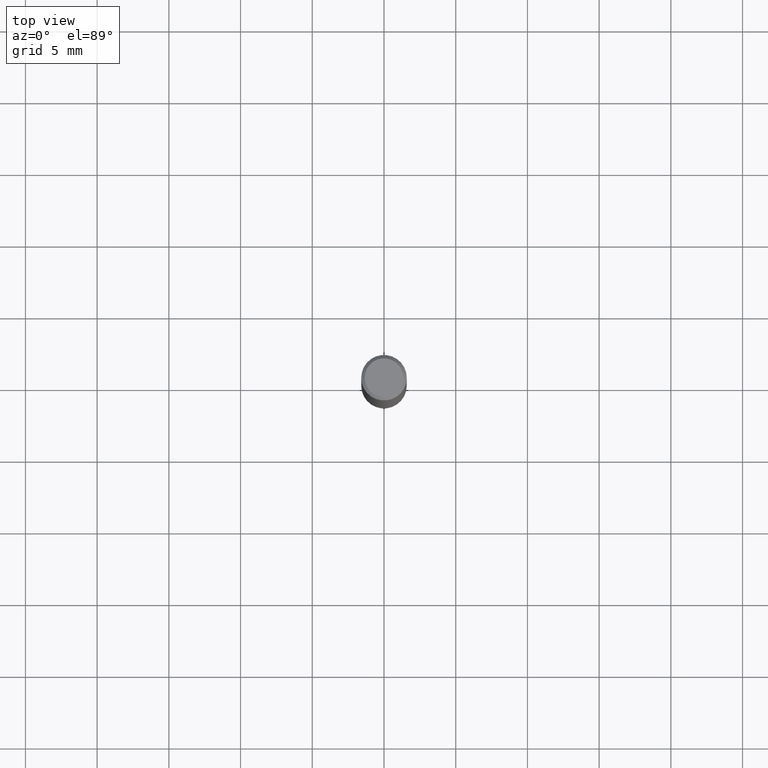
[diagram: clean part render]
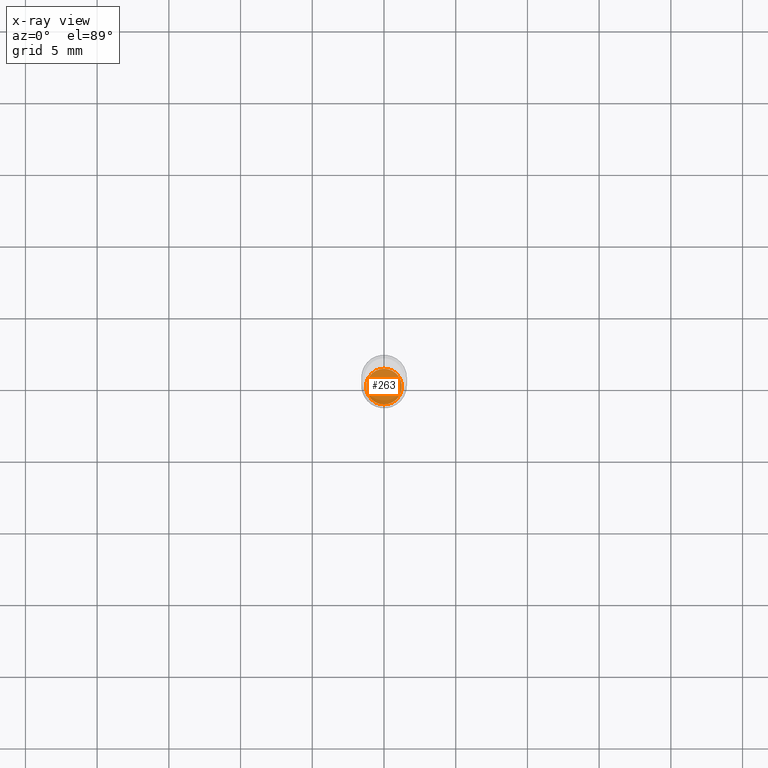
[diagram: x-ray — body ghosted, one internal face saturated and labeled with its STEP entity id]
A machine part, top view, then the same camera in x-ray: the body is ghosted and one INTERNAL B-rep face — a face not visible from any outside direction — is saturated and labeled: STEP entity #263.
In plain terms, the highlighted planar face has unit normal (0, -0, -1).
Its self-contained STEP definition (entity closure, byte-faithful):
#34 = CIRCLE ( 'NONE', #245, 0.04900000000000000189 ) ;
#44 = ORIENTED_EDGE ( 'NONE', *, *, #186, .T. ) ;
#53 = DIRECTION ( 'NONE',  ( -6.982962677686265922E-15, -1.000000000000000000, 5.575199987069924823E-15 ) ) ;
#70 = CARTESIAN_POINT ( 'NONE',  ( -3.421651712065921676E-16, -0.04900000000000497707, -1.426099999999999479 ) ) ;
#91 = CIRCLE ( 'NONE', #227, 0.04900000000000000189 ) ;
#123 = DIRECTION ( 'NONE',  ( -2.445105695917542443E-29, 3.492001333413293557E-15, 1.000000000000000000 ) ) ;
#137 = VERTEX_POINT ( 'NONE', #192 ) ;
#186 = EDGE_CURVE ( 'NONE', #316, #137, #91, .T. ) ;
#187 = EDGE_CURVE ( 'NONE', #137, #316, #34, .T. ) ;
#190 = DIRECTION ( 'NONE',  ( -6.982962677686265922E-15, -1.000000000000000000, 5.575199987069924823E-15 ) ) ;
#192 = CARTESIAN_POINT ( 'NONE',  ( 3.481659405224976194E-16, 0.04899999999999501282, -1.426100000000000145 ) ) ;
#194 = DIRECTION ( 'NONE',  ( 6.982962677686265922E-15, 1.000000000000000000, -3.492001333413293557E-15 ) ) ;
#227 = AXIS2_PLACEMENT_3D ( 'NONE', #307, #353, #190 ) ;
#235 = CARTESIAN_POINT ( 'NONE',  ( 3.487483064500622693E-29, -4.979201537324209694E-15, -1.426099999999999923 ) ) ;
#245 = AXIS2_PLACEMENT_3D ( 'NONE', #235, #123, #53 ) ;
#263 = ADVANCED_FACE ( 'NONE', ( #317 ), #310, .F. ) ;
#307 = CARTESIAN_POINT ( 'NONE',  ( 3.487483064500622693E-29, -4.979201537324209694E-15, -1.426099999999999923 ) ) ;
#310 = PLANE ( 'NONE',  #463 ) ;
#316 = VERTEX_POINT ( 'NONE', #70 ) ;
#317 = FACE_OUTER_BOUND ( 'NONE', #334, .T. ) ;
#334 = EDGE_LOOP ( 'NONE', ( #44, #399 ) ) ;
#353 = DIRECTION ( 'NONE',  ( -2.445105695917542443E-29, 3.492001333413293557E-15, 1.000000000000000000 ) ) ;
#399 = ORIENTED_EDGE ( 'NONE', *, *, #187, .T. ) ;
#425 = DIRECTION ( 'NONE',  ( 2.445105695917541882E-29, -3.492001333413293557E-15, -1.000000000000000000 ) ) ;
#461 = CARTESIAN_POINT ( 'NONE',  ( 3.487483064500622693E-29, -4.979201537324209694E-15, -1.426099999999999923 ) ) ;
#463 = AXIS2_PLACEMENT_3D ( 'NONE', #461, #425, #194 ) ;